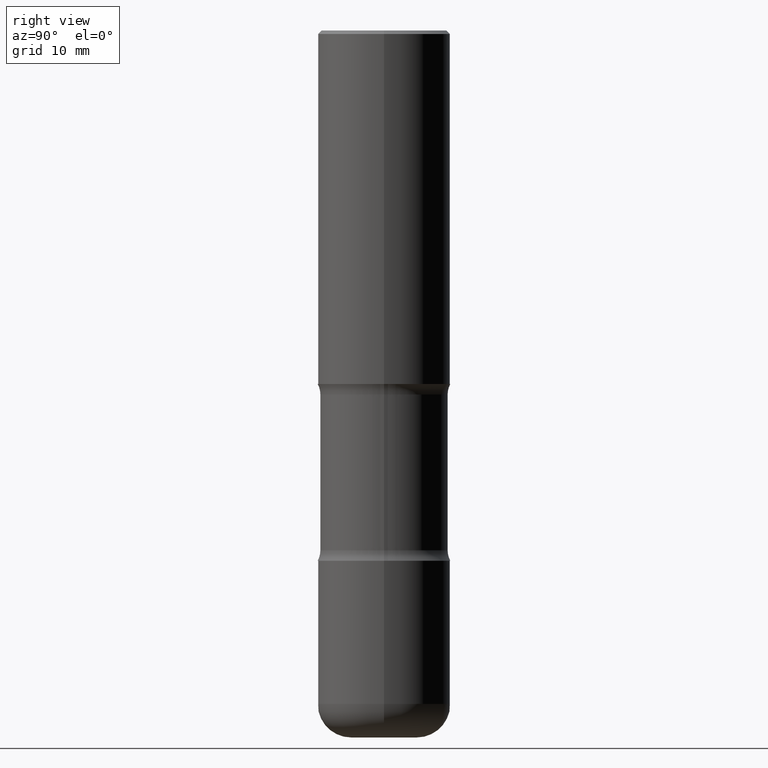
[diagram: clean part render]
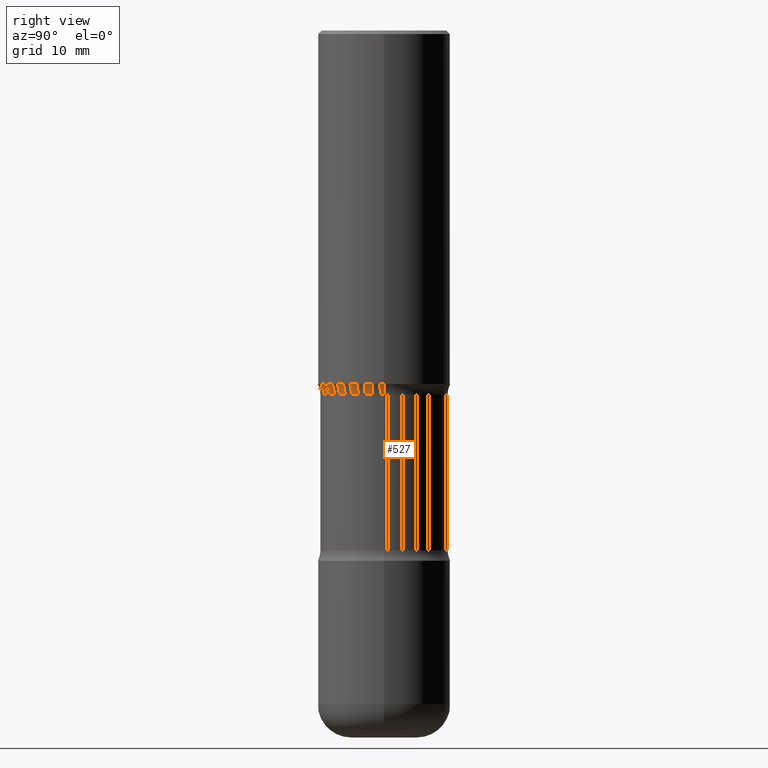
[diagram: same view with one face highlighted and labeled with its STEP entity id]
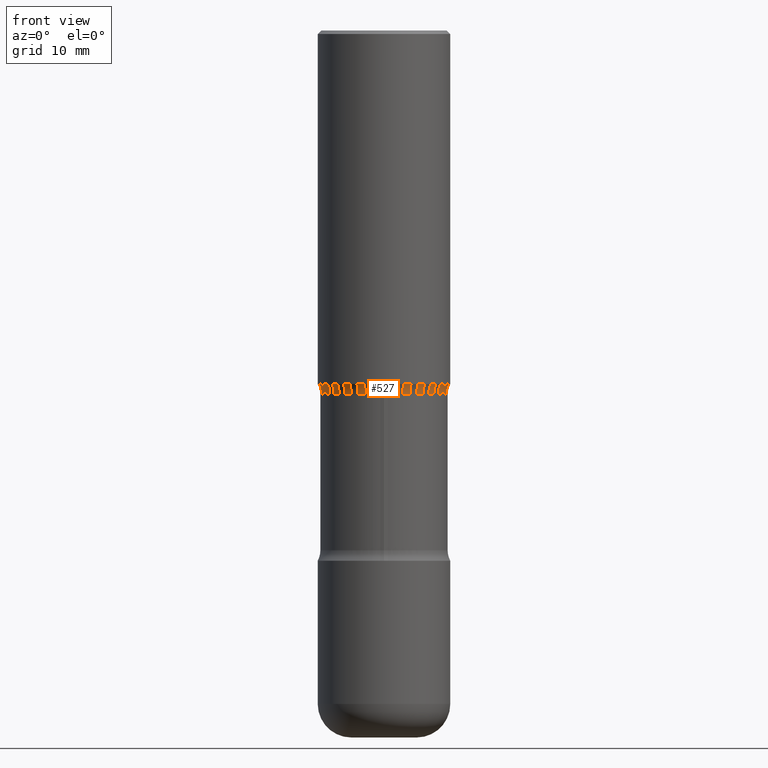
[diagram: same view with one face highlighted and labeled with its STEP entity id]
A machine part, right view. The second image highlights one B-rep face of the part: STEP entity #527.
A second angle (front view) of the same face is appended — the face is thin or edge-on in the first view.
In plain terms, the highlighted toroidal blend (fillet) surface has major radius 12.319 mm and minor (blend) radius 3.175 mm.
Its self-contained STEP definition (entity closure, byte-faithful):
#1 = CARTESIAN_POINT ( 'NONE',  ( -0.3750000000000001110, -4.318427418585914679E-15, -2.000000000000000000 ) ) ;
#7 = CIRCLE ( 'NONE', #339, 0.3599999999999998757 ) ;
#39 = EDGE_LOOP ( 'NONE', ( #757, #508, #301, #769 ) ) ;
#44 = AXIS2_PLACEMENT_3D ( 'NONE', #735, #530, #365 ) ;
#79 = FACE_OUTER_BOUND ( 'NONE', #39, .T. ) ;
#85 = AXIS2_PLACEMENT_3D ( 'NONE', #277, #295, #783 ) ;
#128 = CARTESIAN_POINT ( 'NONE',  ( 0.3599999999999998757, -9.704124460693012319E-15, -2.059371710435190295 ) ) ;
#138 = EDGE_CURVE ( 'NONE', #796, #290, #564, .T. ) ;
#139 = VERTEX_POINT ( 'NONE', #226 ) ;
#226 = CARTESIAN_POINT ( 'NONE',  ( -0.3599999999999998757, -4.475365733287755283E-15, -2.059371710435190295 ) ) ;
#236 = DIRECTION ( 'NONE',  ( 1.000000000000000000, -6.982962677686267499E-15, 0.000000000000000000 ) ) ;
#277 = CARTESIAN_POINT ( 'NONE',  ( 4.890937612370273194E-29, -6.982962677686291165E-15, -2.000000000000000000 ) ) ;
#290 = VERTEX_POINT ( 'NONE', #550 ) ;
#295 = DIRECTION ( 'NONE',  ( -2.445468806185136597E-29, 3.491481338843145583E-15, 1.000000000000000000 ) ) ;
#301 = ORIENTED_EDGE ( 'NONE', *, *, #376, .T. ) ;
#339 = AXIS2_PLACEMENT_3D ( 'NONE', #488, #481, #236 ) ;
#341 = AXIS2_PLACEMENT_3D ( 'NONE', #411, #653, #456 ) ;
#347 = VERTEX_POINT ( 'NONE', #128 ) ;
#365 = DIRECTION ( 'NONE',  ( -1.000000000000000000, 7.105427357601001859E-15, 0.000000000000000000 ) ) ;
#376 = EDGE_CURVE ( 'NONE', #139, #347, #7, .T. ) ;
#397 = EDGE_CURVE ( 'NONE', #290, #347, #424, .T. ) ;
#411 = CARTESIAN_POINT ( 'NONE',  ( 5.036129278209386779E-29, -7.190257896725955672E-15, -2.059371710435190295 ) ) ;
#424 = CIRCLE ( 'NONE', #702, 0.1250000000000000278 ) ;
#445 = DIRECTION ( 'NONE',  ( -6.982962677686266711E-15, -1.000000000000000000, 3.491481338843145583E-15 ) ) ;
#456 = DIRECTION ( 'NONE',  ( 1.000000000000000000, -6.982962677686265133E-15, 4.883557194083112340E-29 ) ) ;
#481 = DIRECTION ( 'NONE',  ( -2.445468806185136597E-29, 3.491481338843145583E-15, 1.000000000000000000 ) ) ;
#488 = CARTESIAN_POINT ( 'NONE',  ( 5.036129278209386779E-29, -7.190257896725955672E-15, -2.059371710435190295 ) ) ;
#508 = ORIENTED_EDGE ( 'NONE', *, *, #604, .T. ) ;
#515 = DIRECTION ( 'NONE',  ( 1.000000000000000000, -6.982962677686261189E-15, 0.000000000000000000 ) ) ;
#527 = ADVANCED_FACE ( 'NONE', ( #79 ), #610, .F. ) ;
#530 = DIRECTION ( 'NONE',  ( 7.105427357601001859E-15, 1.000000000000000000, -3.491481338843145583E-15 ) ) ;
#550 = CARTESIAN_POINT ( 'NONE',  ( 0.3750000000000001110, -9.601573681818640393E-15, -2.000000000000000000 ) ) ;
#564 = CIRCLE ( 'NONE', #85, 0.3750000000000000555 ) ;
#604 = EDGE_CURVE ( 'NONE', #796, #139, #645, .T. ) ;
#610 = TOROIDAL_SURFACE ( 'NONE', #341, 0.4849999999999998757, 0.1250000000000000555 ) ;
#640 = CARTESIAN_POINT ( 'NONE',  ( 0.4849999999999998757, -1.057699479540379408E-14, -2.059371710435190295 ) ) ;
#645 = CIRCLE ( 'NONE', #44, 0.1250000000000000278 ) ;
#653 = DIRECTION ( 'NONE',  ( -2.445468806185136597E-29, 3.491481338843145583E-15, 1.000000000000000000 ) ) ;
#702 = AXIS2_PLACEMENT_3D ( 'NONE', #640, #445, #515 ) ;
#735 = CARTESIAN_POINT ( 'NONE',  ( -0.4849999999999998757, -3.744125628289471443E-15, -2.059371710435190295 ) ) ;
#757 = ORIENTED_EDGE ( 'NONE', *, *, #138, .F. ) ;
#769 = ORIENTED_EDGE ( 'NONE', *, *, #397, .F. ) ;
#783 = DIRECTION ( 'NONE',  ( 1.000000000000000000, -6.982962677686264344E-15, 0.000000000000000000 ) ) ;
#796 = VERTEX_POINT ( 'NONE', #1 ) ;